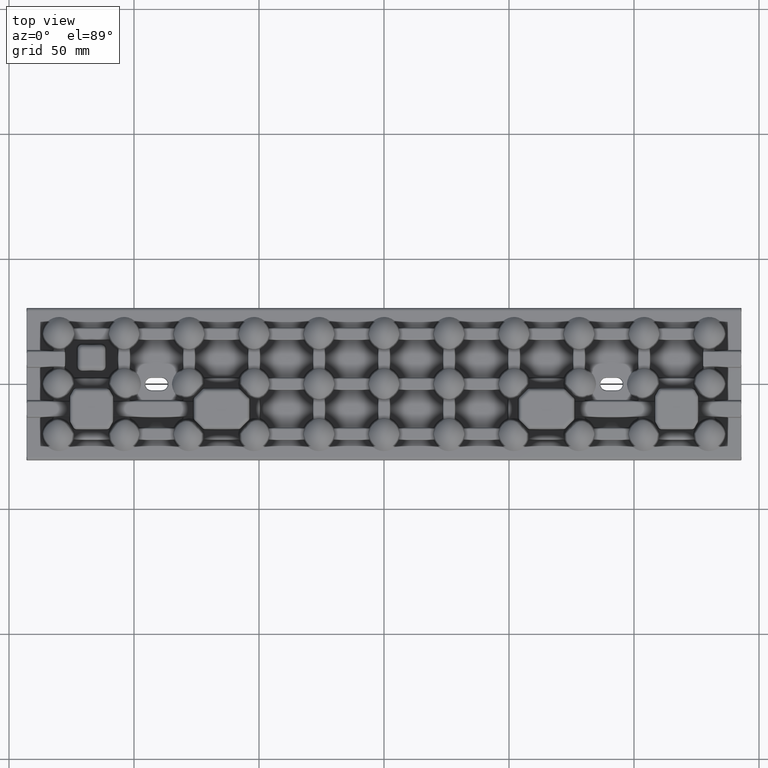
[diagram: clean part render]
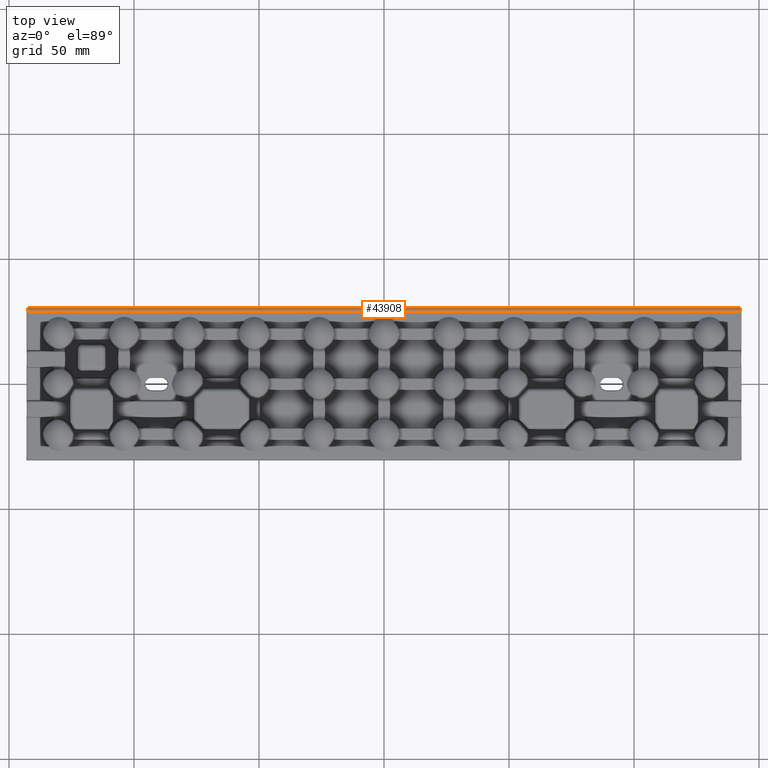
[diagram: same view with one face highlighted and labeled with its STEP entity id]
A machine part, top view. The second image highlights one B-rep face of the part: STEP entity #43908.
In plain terms, the highlighted cylindrical surface (edge-blend (fillet) strip) has radius 1.25 mm, axis along (-1, 0, 0).
Its self-contained STEP definition (entity closure, byte-faithful):
#18 = LINE ( 'NONE', #66685, #66836 ) ;
#1554 = DIRECTION ( 'NONE',  ( -1.000000000000000000, 0.0000000000000000000, 0.0000000000000000000 ) ) ;
#3051 = CARTESIAN_POINT ( 'NONE',  ( -142.5271326951346100, 30.42688902594225900, 0.7936243708781263200 ) ) ;
#9778 = VECTOR ( 'NONE', #38492, 1000.000000000000000 ) ;
#11434 = VERTEX_POINT ( 'NONE', #35529 ) ;
#11741 = CARTESIAN_POINT ( 'NONE',  ( -142.5102327765253600, 30.40203620445797500, 1.505316061697148800 ) ) ;
#11813 = CARTESIAN_POINT ( 'NONE',  ( 142.5102327765253000, 30.40203620445798200, 1.505316061697148600 ) ) ;
#12115 = CARTESIAN_POINT ( 'NONE',  ( -142.4984859507544600, 29.88977599060007900, 2.000000000000000000 ) ) ;
#13874 = ORIENTED_EDGE ( 'NONE', *, *, #105156, .F. ) ;
#18010 = DIRECTION ( 'NONE',  ( 0.0000000000000000000, 0.0000000000000000000, 1.000000000000000000 ) ) ;
#18545 =( BOUNDED_CURVE ( )  B_SPLINE_CURVE ( 3, ( #19777, #11741, #12115, #70663 ),
 .UNSPECIFIED., .F., .F. ) 
 B_SPLINE_CURVE_WITH_KNOTS ( ( 4, 4 ),
 ( 1.605702911834784100, 3.141592653589793100 ),
 .UNSPECIFIED. ) 
 CURVE ( )  GEOMETRIC_REPRESENTATION_ITEM ( )  RATIONAL_B_SPLINE_CURVE ( ( 1.000000000000000000, 0.8128932002257676100, 0.8128932002257676100, 1.000000000000000000 ) ) 
 REPRESENTATION_ITEM ( '' )  );
#19777 = CARTESIAN_POINT ( 'NONE',  ( -142.5271326951346100, 30.42688902594225900, 0.7936243708781263200 ) ) ;
#23420 = CYLINDRICAL_SURFACE ( 'NONE', #51187, 1.250000000000000000 ) ;
#25067 = ORIENTED_EDGE ( 'NONE', *, *, #99645, .T. ) ;
#27547 = CARTESIAN_POINT ( 'NONE',  ( 142.4984859507544300, 29.88977599060007200, 2.000000000000000000 ) ) ;
#32921 = EDGE_CURVE ( 'NONE', #11434, #64197, #18, .T. ) ;
#34648 = LINE ( 'NONE', #46978, #9778 ) ;
#35529 = CARTESIAN_POINT ( 'NONE',  ( 142.4984859507544300, 29.17765049216839300, 2.000000000000000000 ) ) ;
#35804 = VERTEX_POINT ( 'NONE', #3051 ) ;
#38492 = DIRECTION ( 'NONE',  ( 1.000000000000000000, -0.0000000000000000000, -0.0000000000000000000 ) ) ;
#39561 = CARTESIAN_POINT ( 'NONE',  ( -142.4984859507544300, 29.17765049216839300, 2.000000000000000000 ) ) ;
#42162 = DIRECTION ( 'NONE',  ( -1.000000000000000000, 0.0000000000000000000, -0.0000000000000000000 ) ) ;
#42586 = CARTESIAN_POINT ( 'NONE',  ( 0.0000000000000000000, 29.17765049216839300, 0.7500000000000000000 ) ) ;
#43908 = ADVANCED_FACE ( 'NONE', ( #50199 ), #23420, .T. ) ;
#46978 = CARTESIAN_POINT ( 'NONE',  ( 142.8847614606772000, 30.42688902594225900, 0.7936243708781263200 ) ) ;
#50199 = FACE_OUTER_BOUND ( 'NONE', #92575, .T. ) ;
#51187 = AXIS2_PLACEMENT_3D ( 'NONE', #42586, #1554, #18010 ) ;
#52498 = ORIENTED_EDGE ( 'NONE', *, *, #32921, .F. ) ;
#55031 = ORIENTED_EDGE ( 'NONE', *, *, #95789, .T. ) ;
#64197 = VERTEX_POINT ( 'NONE', #39561 ) ;
#66685 = CARTESIAN_POINT ( 'NONE',  ( -142.8847614606772000, 29.17765049216839300, 2.000000000000000000 ) ) ;
#66836 = VECTOR ( 'NONE', #42162, 1000.000000000000000 ) ;
#70374 = CARTESIAN_POINT ( 'NONE',  ( 142.5271326951346400, 30.42688902594225900, 0.7936243708781263200 ) ) ;
#70663 = CARTESIAN_POINT ( 'NONE',  ( -142.4984859507544300, 29.17765049216839300, 2.000000000000000000 ) ) ;
#80487 = CARTESIAN_POINT ( 'NONE',  ( 142.5271326951346400, 30.42688902594225900, 0.7936243708781263200 ) ) ;
#81179 = VERTEX_POINT ( 'NONE', #80487 ) ;
#86213 =( BOUNDED_CURVE ( )  B_SPLINE_CURVE ( 3, ( #103706, #27547, #11813, #70374 ),
 .UNSPECIFIED., .F., .F. ) 
 B_SPLINE_CURVE_WITH_KNOTS ( ( 4, 4 ),
 ( 0.0000000000000000000, 1.535889741755009700 ),
 .UNSPECIFIED. ) 
 CURVE ( )  GEOMETRIC_REPRESENTATION_ITEM ( )  RATIONAL_B_SPLINE_CURVE ( ( 1.000000000000000000, 0.8128932002257675000, 0.8128932002257675000, 1.000000000000000000 ) ) 
 REPRESENTATION_ITEM ( '' )  );
#92575 = EDGE_LOOP ( 'NONE', ( #52498, #25067, #13874, #55031 ) ) ;
#95789 = EDGE_CURVE ( 'NONE', #35804, #64197, #18545, .T. ) ;
#99645 = EDGE_CURVE ( 'NONE', #11434, #81179, #86213, .T. ) ;
#103706 = CARTESIAN_POINT ( 'NONE',  ( 142.4984859507544300, 29.17765049216839300, 2.000000000000000000 ) ) ;
#105156 = EDGE_CURVE ( 'NONE', #35804, #81179, #34648, .T. ) ;